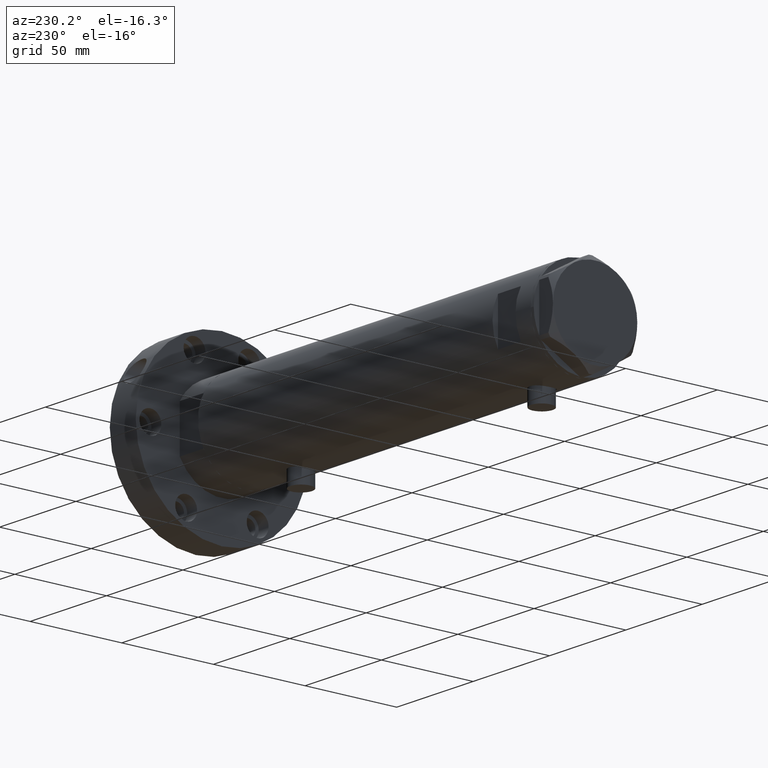
[diagram: clean part render]
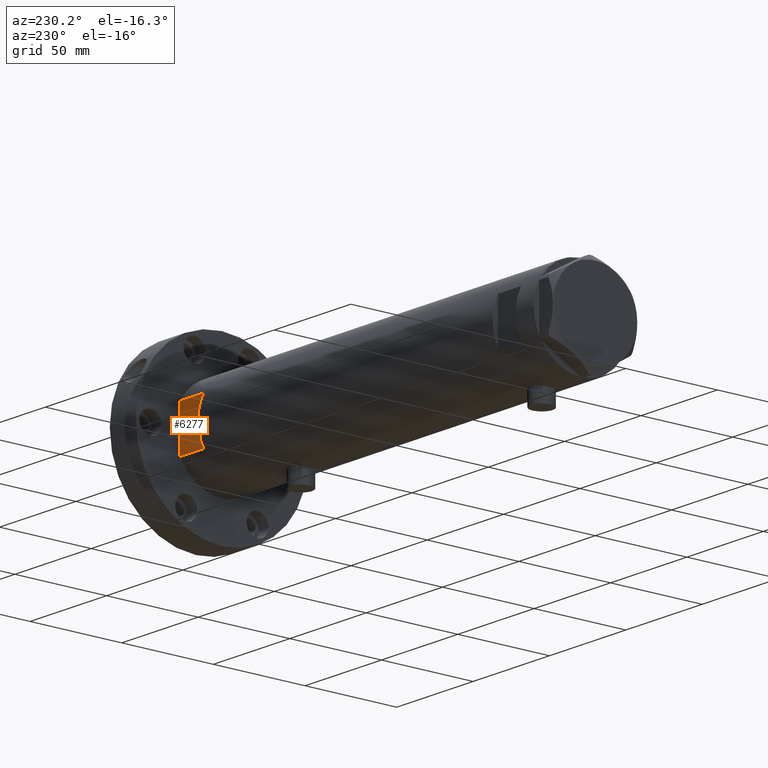
[diagram: same view with one face highlighted and labeled with its STEP entity id]
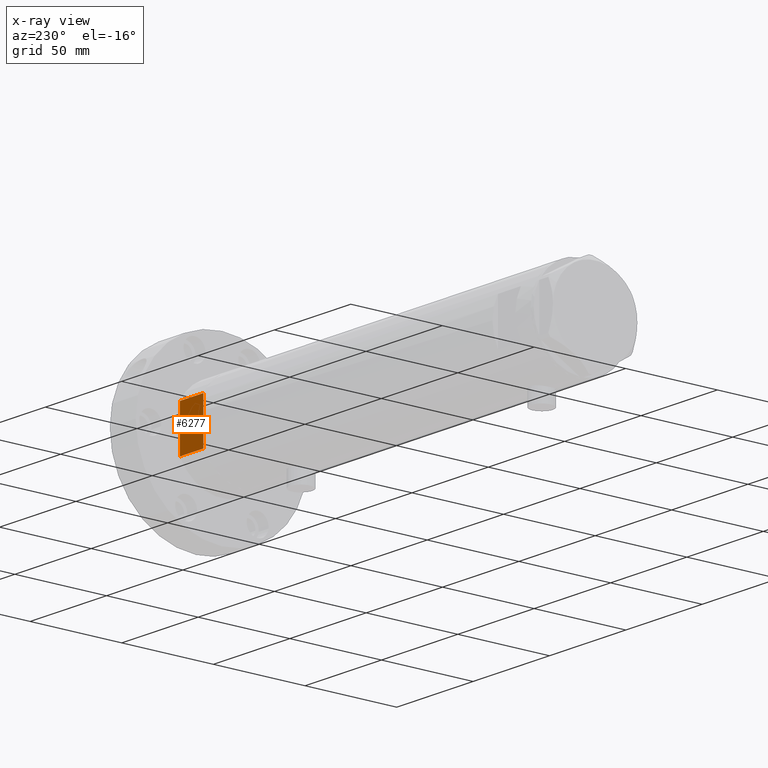
[diagram: x-ray of the same camera — body ghosted, the highlighted face saturated]
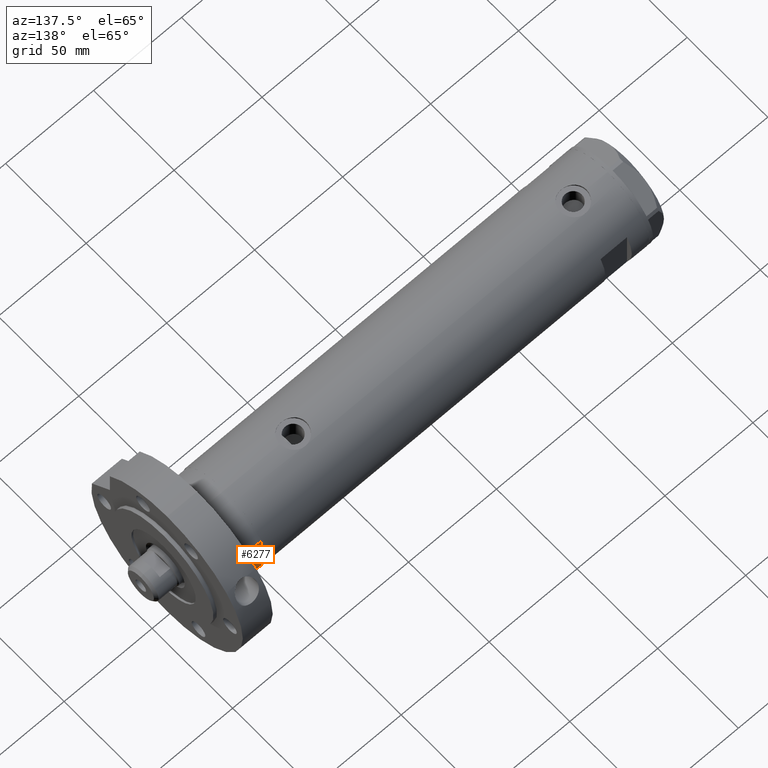
[diagram: same view with one face highlighted and labeled with its STEP entity id]
A machine part, auxiliary view. The second image highlights one B-rep face of the part: STEP entity #6277.
The next image is the same camera in x-ray: the body ghosted, the highlighted face saturated — about 0% of this face is hidden behind the body in this view.
A second angle (auxiliary view) of the same face is appended — the face is thin or edge-on in the first view.
In plain terms, the highlighted planar face has unit normal (0, -1, -0).
Its self-contained STEP definition (entity closure, byte-faithful):
#49 = CARTESIAN_POINT ( 'NONE',  ( -12.12435565298215145, 23.00000000000000355, 0.000000000000000000 ) ) ;
#108 = VERTEX_POINT ( 'NONE', #5541 ) ;
#472 = ORIENTED_EDGE ( 'NONE', *, *, #5010, .F. ) ;
#488 = LINE ( 'NONE', #1503, #3833 ) ;
#668 = VECTOR ( 'NONE', #3923, 1000.000000000000000 ) ;
#765 = ORIENTED_EDGE ( 'NONE', *, *, #6075, .F. ) ;
#826 = DIRECTION ( 'NONE',  ( 0.000000000000000000, -1.000000000000000000, 0.000000000000000000 ) ) ;
#1503 = CARTESIAN_POINT ( 'NONE',  ( -12.12435565298215145, 23.00000000000000355, 15.50000000000000000 ) ) ;
#1546 = EDGE_CURVE ( 'NONE', #5851, #5807, #488, .T. ) ;
#1863 = CARTESIAN_POINT ( 'NONE',  ( 12.12435565298214790, 23.00000000000000355, 15.50000000000000000 ) ) ;
#1958 = CARTESIAN_POINT ( 'NONE',  ( 12.12435565298215323, 23.00000000000000355, 0.000000000000000000 ) ) ;
#1978 = VERTEX_POINT ( 'NONE', #2861 ) ;
#2265 = EDGE_LOOP ( 'NONE', ( #6106, #765, #472, #5340 ) ) ;
#2267 = CARTESIAN_POINT ( 'NONE',  ( -12.12435565298215145, 23.00000000000000355, 0.000000000000000000 ) ) ;
#2798 = EDGE_CURVE ( 'NONE', #108, #5851, #4502, .T. ) ;
#2861 = CARTESIAN_POINT ( 'NONE',  ( 12.12435565298214080, 23.00000000000000355, 0.000000000000000000 ) ) ;
#2933 = VECTOR ( 'NONE', #3933, 1000.000000000000000 ) ;
#3833 = VECTOR ( 'NONE', #4569, 1000.000000000000000 ) ;
#3923 = DIRECTION ( 'NONE',  ( -0.000000000000000000, -0.000000000000000000, 1.000000000000000000 ) ) ;
#3933 = DIRECTION ( 'NONE',  ( 1.000000000000000000, 0.000000000000000000, 0.000000000000000000 ) ) ;
#4360 = PLANE ( 'NONE',  #4538 ) ;
#4441 = LINE ( 'NONE', #5419, #2933 ) ;
#4502 = LINE ( 'NONE', #49, #4701 ) ;
#4538 = AXIS2_PLACEMENT_3D ( 'NONE', #2267, #826, #5780 ) ;
#4569 = DIRECTION ( 'NONE',  ( 1.000000000000000000, 0.000000000000000000, 0.000000000000000000 ) ) ;
#4701 = VECTOR ( 'NONE', #5623, 1000.000000000000000 ) ;
#4875 = FACE_OUTER_BOUND ( 'NONE', #2265, .T. ) ;
#5010 = EDGE_CURVE ( 'NONE', #108, #1978, #4441, .T. ) ;
#5340 = ORIENTED_EDGE ( 'NONE', *, *, #2798, .T. ) ;
#5419 = CARTESIAN_POINT ( 'NONE',  ( -12.12435565298215145, 23.00000000000000355, 0.000000000000000000 ) ) ;
#5541 = CARTESIAN_POINT ( 'NONE',  ( -12.12435565298215145, 23.00000000000000355, 0.000000000000000000 ) ) ;
#5623 = DIRECTION ( 'NONE',  ( -0.000000000000000000, -0.000000000000000000, 1.000000000000000000 ) ) ;
#5780 = DIRECTION ( 'NONE',  ( 0.000000000000000000, -0.000000000000000000, -1.000000000000000000 ) ) ;
#5807 = VERTEX_POINT ( 'NONE', #1863 ) ;
#5851 = VERTEX_POINT ( 'NONE', #6278 ) ;
#6075 = EDGE_CURVE ( 'NONE', #1978, #5807, #6445, .T. ) ;
#6106 = ORIENTED_EDGE ( 'NONE', *, *, #1546, .T. ) ;
#6277 = ADVANCED_FACE ( 'NONE', ( #4875 ), #4360, .F. ) ;
#6278 = CARTESIAN_POINT ( 'NONE',  ( -12.12435565298214613, 23.00000000000000355, 15.50000000000000000 ) ) ;
#6445 = LINE ( 'NONE', #1958, #668 ) ;